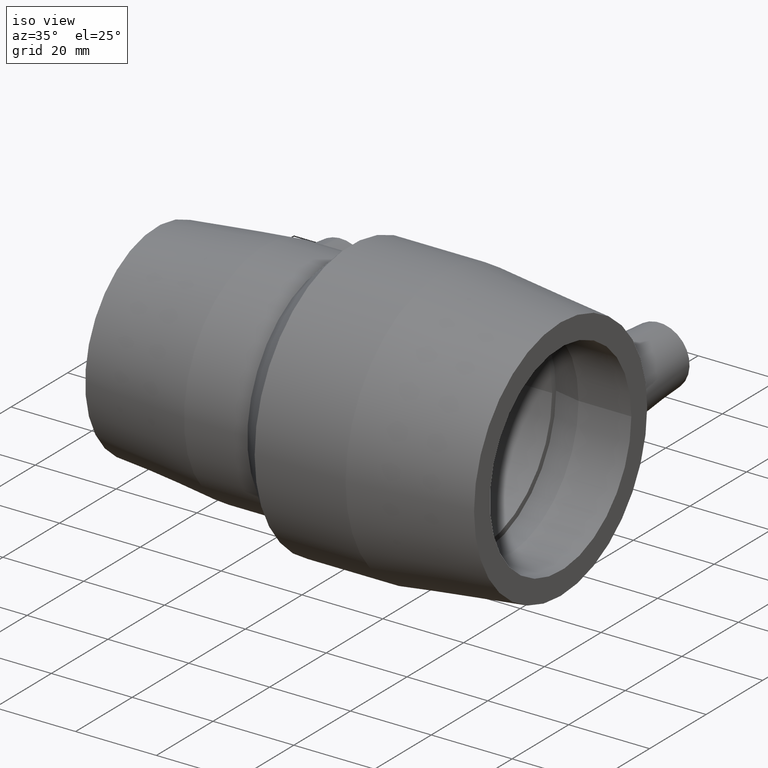
[diagram: clean part render]
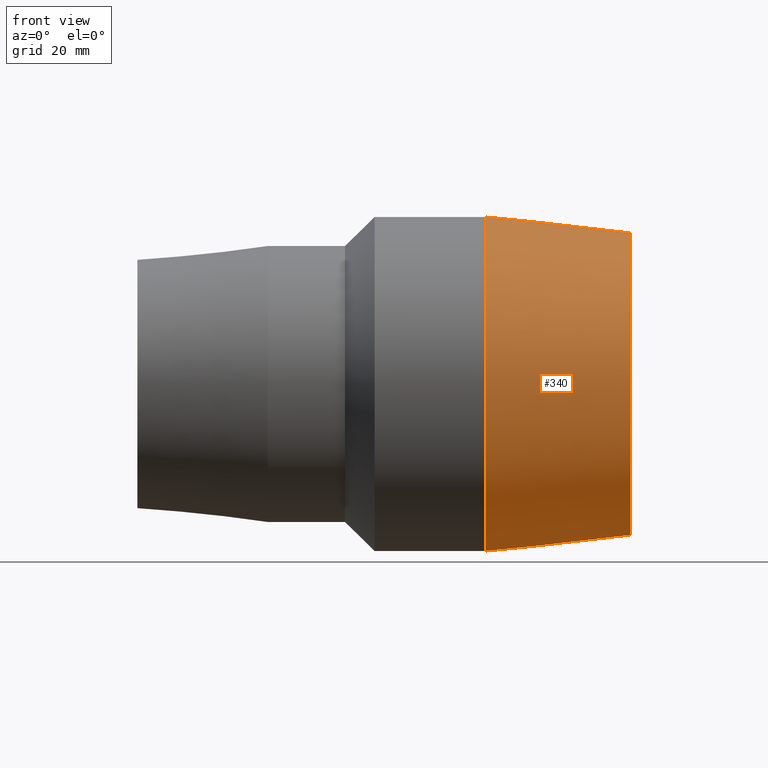
[diagram: tour spotlight — one face highlighted and labeled with its STEP entity id]
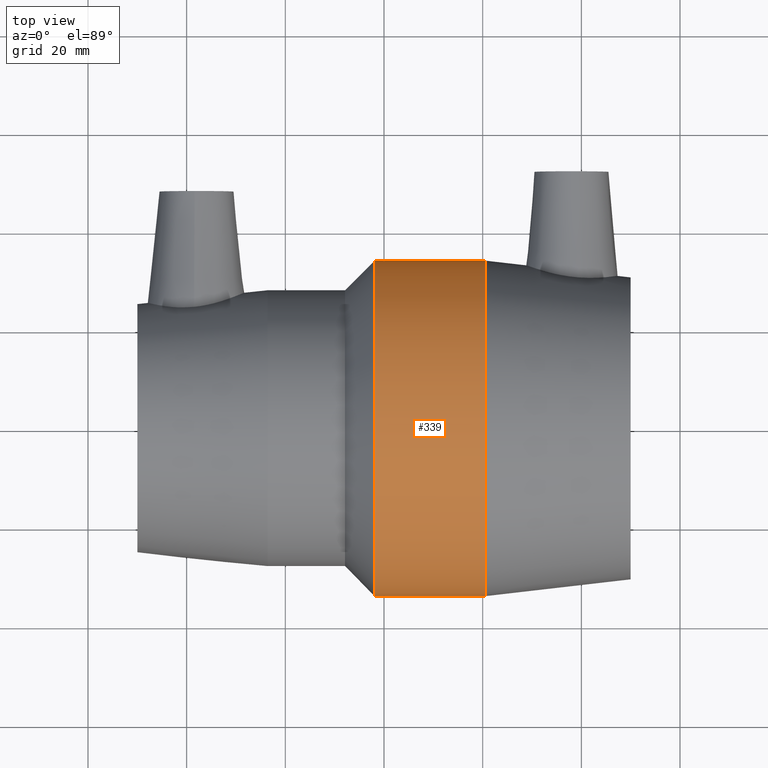
[diagram: tour spotlight — one face highlighted and labeled with its STEP entity id]
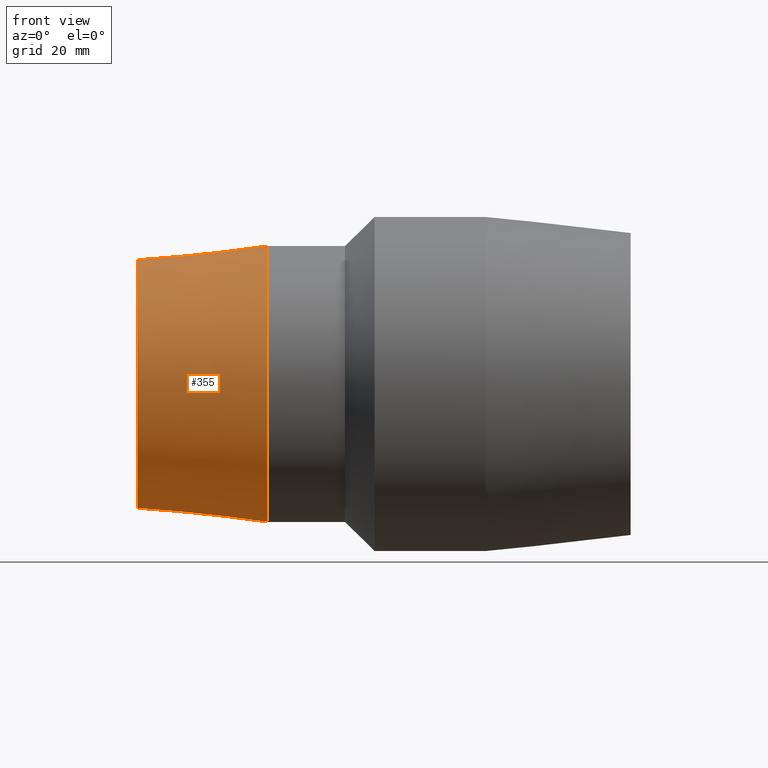
[diagram: tour spotlight — one face highlighted and labeled with its STEP entity id]
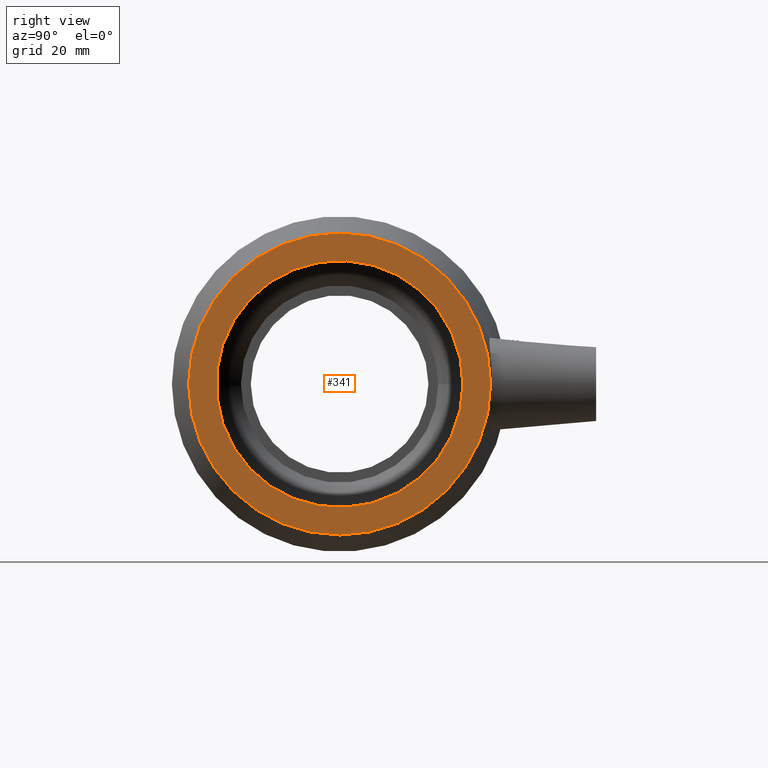
[diagram: tour spotlight — one face highlighted and labeled with its STEP entity id]
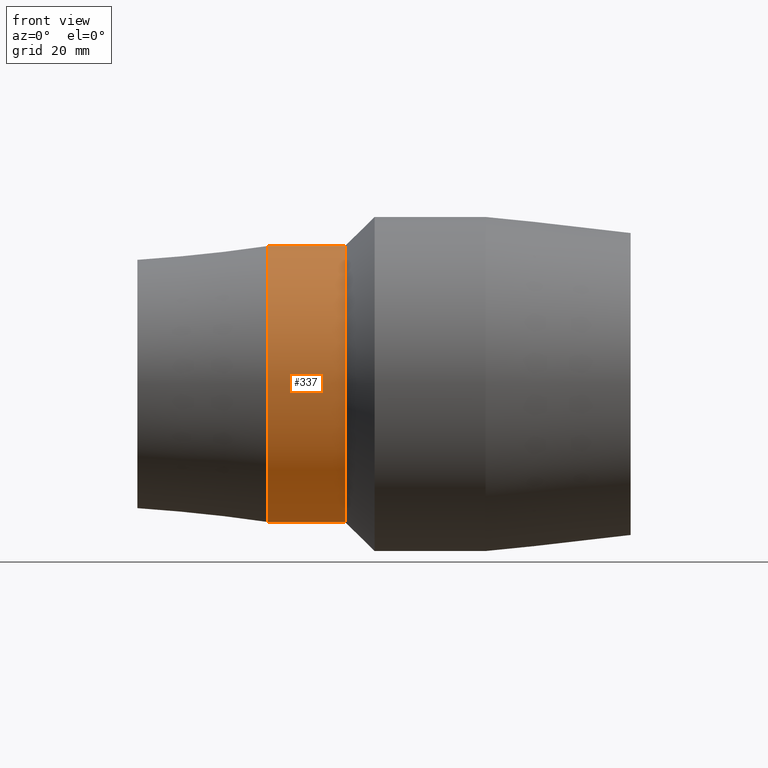
[diagram: tour spotlight — one face highlighted and labeled with its STEP entity id]
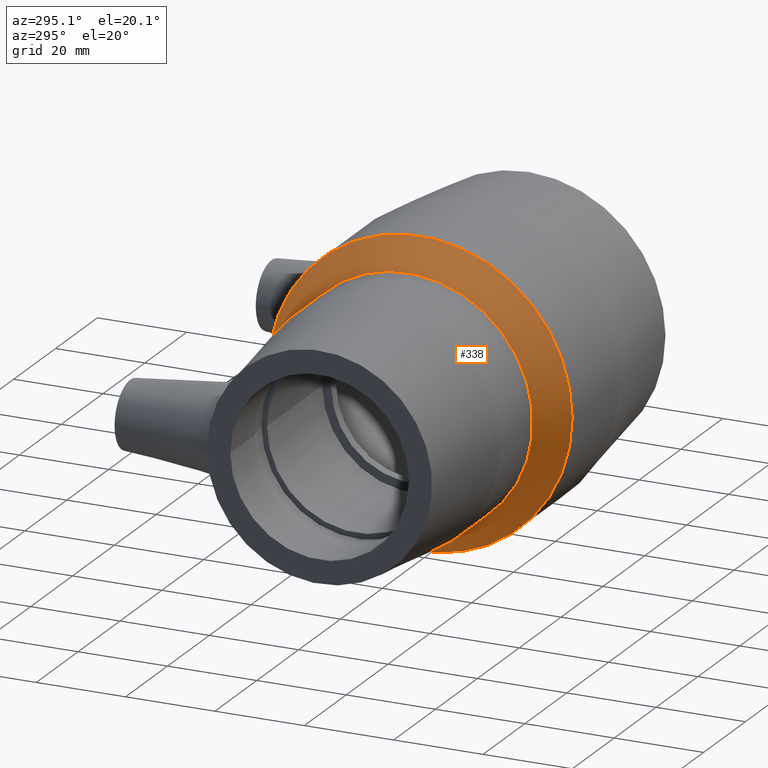
[diagram: tour spotlight — one face highlighted and labeled with its STEP entity id]
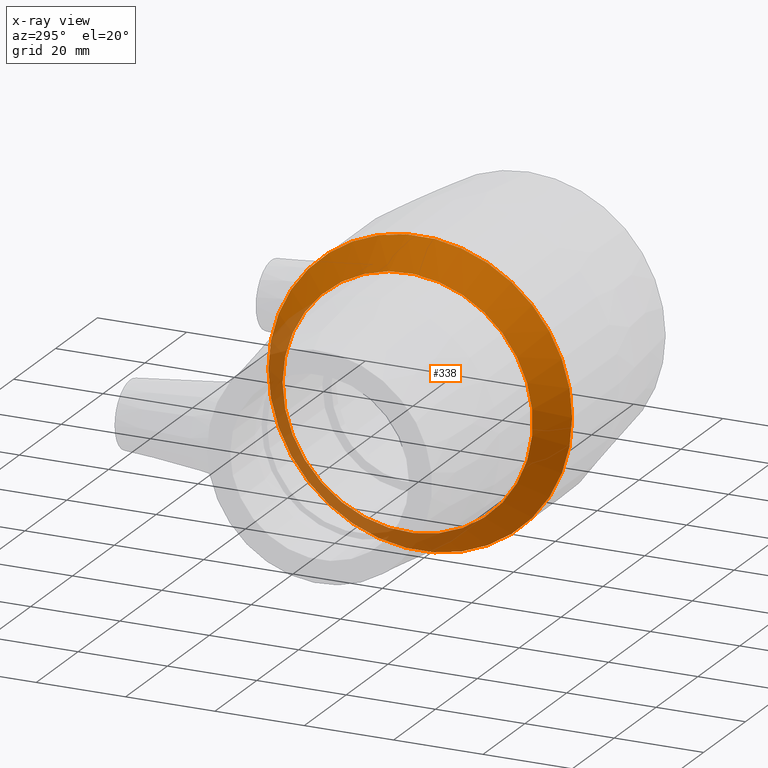
[diagram: x-ray of the same camera — body ghosted, this tour face saturated]
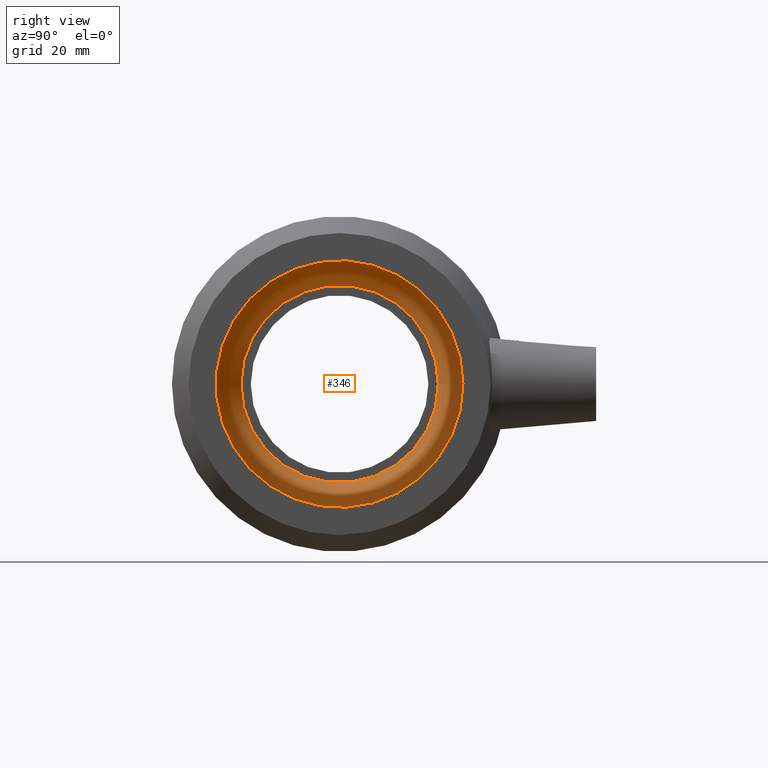
[diagram: tour spotlight — one face highlighted and labeled with its STEP entity id]
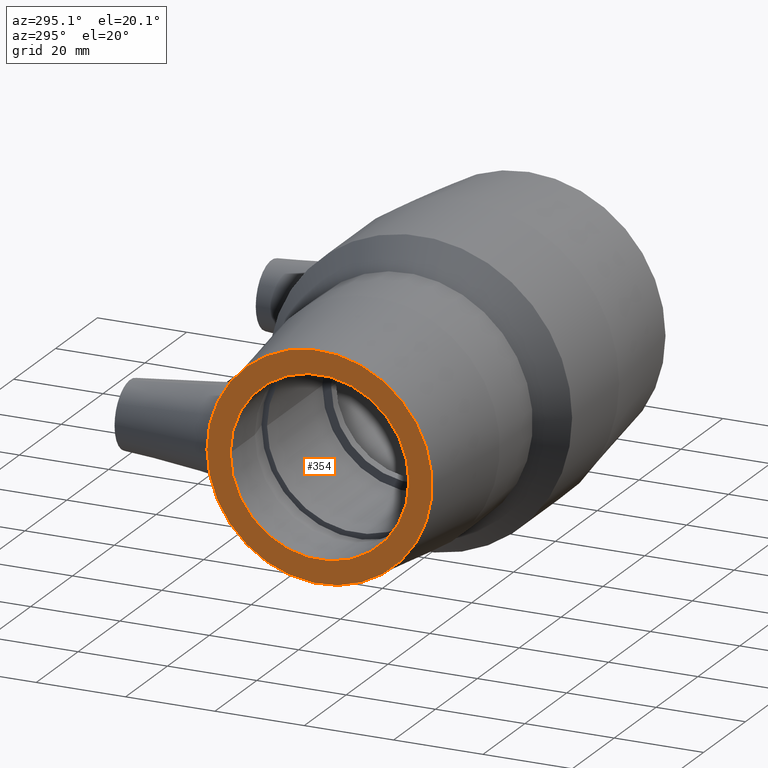
[diagram: tour spotlight — one face highlighted and labeled with its STEP entity id]
A machine part: a face-by-face anatomy tour. The part has 31 B-rep faces; the first image is the clean iso view, then the 8 largest visible faces are spotlighted one at a time (largest first), each with its STEP entity span.

Face 1 — front view, entity #340. In plain terms, the highlighted conical surface has half-angle 6.597 deg.
Definition (entity closure, byte-faithful):
#15=B_SPLINE_CURVE_WITH_KNOTS('',3,(#561,#562,#563,#564,#565,#566,#567,
#568,#569,#570,#571,#572,#573,#574,#575,#576,#577,#578,#579,#580,#581,#582,
#583,#584,#585,#586,#587,#588,#589,#590,#591,#592,#593,#594),
 .UNSPECIFIED.,.T.,.F.,(4,2,2,2,2,2,2,2,2,2,2,2,2,2,2,2,4),(0.,0.342432734766515,
0.684865469533029,1.02997856915003,1.37509166876702,1.72020476838402,2.06531786800102,
2.40775060276753,2.75018333753405,3.11916726229036,3.48815118704667,3.84866135423517,
4.20917152142366,4.56968168861216,4.93019185580066,5.29917578055697,5.66815970531328),
 .UNSPECIFIED.);
#20=CONICAL_SURFACE('',#387,32.3,6.59673829789422);
#38=FACE_BOUND('',#127,.T.);
#39=FACE_BOUND('',#128,.T.);
#82=FACE_OUTER_BOUND('',#126,.T.);
#126=EDGE_LOOP('',(#279));
#127=EDGE_LOOP('',(#280));
#128=EDGE_LOOP('',(#281));
#173=CIRCLE('',#386,34.);
#174=CIRCLE('',#388,30.6);
#195=VERTEX_POINT('',#560);
#204=VERTEX_POINT('',#652);
#205=VERTEX_POINT('',#655);
#226=EDGE_CURVE('',#195,#195,#15,.T.);
#235=EDGE_CURVE('',#204,#204,#173,.T.);
#236=EDGE_CURVE('',#205,#205,#174,.T.);
#279=ORIENTED_EDGE('',*,*,#236,.F.);
#280=ORIENTED_EDGE('',*,*,#226,.T.);
#281=ORIENTED_EDGE('',*,*,#235,.T.);
#340=ADVANCED_FACE('',(#82,#38,#39),#20,.T.);
#386=AXIS2_PLACEMENT_3D('',#653,#476,#477);
#387=AXIS2_PLACEMENT_3D('',#654,#478,#479);
#388=AXIS2_PLACEMENT_3D('',#656,#480,#481);
#476=DIRECTION('center_axis',(1.,1.83697019872103E-16,0.));
#477=DIRECTION('ref_axis',(0.,0.,-1.));
#478=DIRECTION('center_axis',(-1.,-1.83697019872103E-16,0.));
#479=DIRECTION('ref_axis',(-1.68112701893672E-16,1.,0.));
#480=DIRECTION('center_axis',(1.,1.83697019872103E-16,0.));
#481=DIRECTION('ref_axis',(0.,0.,-1.));
#560=CARTESIAN_POINT('',(38.4085254810939,30.5355225087836,-9.36899601082441));
#561=CARTESIAN_POINT('Ctrl Pts',(38.4085254810939,30.5355225087836,-9.36899601082441));
#562=CARTESIAN_POINT('Ctrl Pts',(39.5424107903605,30.4101609984625,-9.33053223507696));
#563=CARTESIAN_POINT('Ctrl Pts',(40.7490617034868,30.3487939558085,-9.06422943247845));
#564=CARTESIAN_POINT('Ctrl Pts',(42.956955881338,30.3641392340035,-8.06975601493136));
#565=CARTESIAN_POINT('Ctrl Pts',(43.9583183693886,30.4365503841,-7.34178839052401));
#566=CARTESIAN_POINT('Ctrl Pts',(45.5363006633839,30.6031300509679,-5.68810780576688));
#567=CARTESIAN_POINT('Ctrl Pts',(46.2192072077118,30.7083425914643,-4.64731901678957));
#568=CARTESIAN_POINT('Ctrl Pts',(47.1238051543204,30.8619399077858,-2.37858520128931));
#569=CARTESIAN_POINT('Ctrl Pts',(47.3453988441869,30.9069946914886,-1.15037699872333));
#570=CARTESIAN_POINT('Ctrl Pts',(47.3453988441869,30.9069946914886,1.15037699872333));
#571=CARTESIAN_POINT('Ctrl Pts',(47.1238051543204,30.8619399077858,2.37858520128931));
#572=CARTESIAN_POINT('Ctrl Pts',(46.2192072077118,30.7083425914643,4.64731901678956));
#573=CARTESIAN_POINT('Ctrl Pts',(45.5363006633839,30.6031300509679,5.68810780576688));
#574=CARTESIAN_POINT('Ctrl Pts',(43.9583183693886,30.4365503841,7.34178839052401));
#575=CARTESIAN_POINT('Ctrl Pts',(42.956955881338,30.3641392340035,8.06975601493136));
#576=CARTESIAN_POINT('Ctrl Pts',(40.7490617034868,30.3487939558085,9.06422943247845));
#577=CARTESIAN_POINT('Ctrl Pts',(39.5424107903605,30.4101609984625,9.33053223507696));
#578=CARTESIAN_POINT('Ctrl Pts',(37.186722162781,30.6706041683193,9.41044215044629));
#579=CARTESIAN_POINT('Ctrl Pts',(35.8943817477014,30.8964776332697,9.19459344926441));
#580=CARTESIAN_POINT('Ctrl Pts',(33.528955443483,31.4444182565663,8.25167606210774));
#581=CARTESIAN_POINT('Ctrl Pts',(32.4545607247763,31.7617776769293,7.52516142753915));
#582=CARTESIAN_POINT('Ctrl Pts',(30.7765229812766,32.3087200692648,5.85245393581107));
#583=CARTESIAN_POINT('Ctrl Pts',(30.0518227851557,32.5762004731236,4.79999589671865));
#584=CARTESIAN_POINT('Ctrl Pts',(29.0841659888349,32.9469362120325,2.47500993053819));
#585=CARTESIAN_POINT('Ctrl Pts',(28.8418155378304,33.0468648697747,1.20170055729499));
#586=CARTESIAN_POINT('Ctrl Pts',(28.8418155378304,33.0468648697747,-1.20170055729498));
#587=CARTESIAN_POINT('Ctrl Pts',(29.0841659888349,32.9469362120325,-2.47500993053819));
#588=CARTESIAN_POINT('Ctrl Pts',(30.0518227851557,32.5762004731237,-4.79999589671865));
#589=CARTESIAN_POINT('Ctrl Pts',(30.7765229812766,32.3087200692648,-5.85245393581107));
#590=CARTESIAN_POINT('Ctrl Pts',(32.4545607247763,31.7617776769293,-7.52516142753915));
#591=CARTESIAN_POINT('Ctrl Pts',(33.528955443483,31.4444182565663,-8.25167606210774));
#592=CARTESIAN_POINT('Ctrl Pts',(35.8943817477014,30.8964776332697,-9.19459344926441));
#593=CARTESIAN_POINT('Ctrl Pts',(37.186722162781,30.6706041683194,-9.41044215044629));
#594=CARTESIAN_POINT('Ctrl Pts',(38.4085254810939,30.5355225087836,-9.3689960108244));
#652=CARTESIAN_POINT('',(20.6,34.,0.));
#653=CARTESIAN_POINT('Origin',(20.6,1.29690096029705E-14,0.));
#654=CARTESIAN_POINT('Origin',(35.3,1.56693557950904E-14,0.));
#655=CARTESIAN_POINT('',(50.,30.6,0.));
#656=CARTESIAN_POINT('Origin',(50.,1.83697019872103E-14,0.));

Face 2 — top view, entity #339. In plain terms, the highlighted cylindrical surface (bore or boss wall) has radius 34 mm, axis along (1, 0, 0).
Definition (entity closure, byte-faithful):
#37=FACE_BOUND('',#125,.T.);
#61=CYLINDRICAL_SURFACE('',#385,34.);
#81=FACE_OUTER_BOUND('',#124,.T.);
#124=EDGE_LOOP('',(#277));
#125=EDGE_LOOP('',(#278));
#172=CIRCLE('',#384,34.);
#173=CIRCLE('',#386,34.);
#203=VERTEX_POINT('',#649);
#204=VERTEX_POINT('',#652);
#234=EDGE_CURVE('',#203,#203,#172,.T.);
#235=EDGE_CURVE('',#204,#204,#173,.T.);
#277=ORIENTED_EDGE('',*,*,#235,.F.);
#278=ORIENTED_EDGE('',*,*,#234,.T.);
#339=ADVANCED_FACE('',(#81,#37),#61,.T.);
#384=AXIS2_PLACEMENT_3D('',#650,#472,#473);
#385=AXIS2_PLACEMENT_3D('',#651,#474,#475);
#386=AXIS2_PLACEMENT_3D('',#653,#476,#477);
#472=DIRECTION('center_axis',(1.,1.83697019872103E-16,0.));
#473=DIRECTION('ref_axis',(0.,0.,-1.));
#474=DIRECTION('center_axis',(1.,1.83697019872103E-16,0.));
#475=DIRECTION('ref_axis',(-1.68112701893672E-16,1.,0.));
#476=DIRECTION('center_axis',(1.,1.83697019872103E-16,0.));
#477=DIRECTION('ref_axis',(0.,0.,-1.));
#649=CARTESIAN_POINT('',(-1.9,34.,0.));
#650=CARTESIAN_POINT('Origin',(-1.89999999999999,8.83582665584815E-15,0.));
#651=CARTESIAN_POINT('Origin',(9.35000000000001,1.09024181294093E-14,0.));
#652=CARTESIAN_POINT('',(20.6,34.,0.));
#653=CARTESIAN_POINT('Origin',(20.6,1.29690096029705E-14,0.));

Face 3 — front view, entity #355. In plain terms, the highlighted conical surface has half-angle 6.054 deg.
Definition (entity closure, byte-faithful):
#16=B_SPLINE_CURVE_WITH_KNOTS('',3,(#609,#610,#611,#612,#613,#614,#615,
#616,#617,#618,#619,#620,#621,#622,#623,#624,#625,#626,#627,#628,#629,#630,
#631,#632,#633,#634,#635,#636,#637,#638,#639,#640,#641,#642),
 .UNSPECIFIED.,.T.,.F.,(4,2,2,2,2,2,2,2,2,2,2,2,2,2,2,2,4),(0.,0.361943596888965,
0.723887193777931,1.08941629483366,1.45494539588939,1.82047449694512,2.18600359800085,
2.54794719488982,2.90989079177879,3.30576732530484,3.70164385883088,4.08555674775356,
4.46946963667623,4.85338252559891,5.23729541452158,5.63317194804763,6.02904848157368),
 .UNSPECIFIED.);
#24=CONICAL_SURFACE('',#417,26.6,6.05419189411482);
#54=FACE_BOUND('',#158,.T.);
#55=FACE_BOUND('',#159,.T.);
#97=FACE_OUTER_BOUND('',#157,.T.);
#157=EDGE_LOOP('',(#310));
#158=EDGE_LOOP('',(#311));
#159=EDGE_LOOP('',(#312));
#171=CIRCLE('',#382,28.);
#188=CIRCLE('',#416,25.2);
#200=VERTEX_POINT('',#608);
#202=VERTEX_POINT('',#646);
#219=VERTEX_POINT('',#697);
#231=EDGE_CURVE('',#200,#200,#16,.T.);
#233=EDGE_CURVE('',#202,#202,#171,.T.);
#250=EDGE_CURVE('',#219,#219,#188,.T.);
#310=ORIENTED_EDGE('',*,*,#233,.F.);
#311=ORIENTED_EDGE('',*,*,#231,.T.);
#312=ORIENTED_EDGE('',*,*,#250,.T.);
#355=ADVANCED_FACE('',(#97,#54,#55),#24,.T.);
#382=AXIS2_PLACEMENT_3D('',#647,#468,#469);
#416=AXIS2_PLACEMENT_3D('',#698,#536,#537);
#417=AXIS2_PLACEMENT_3D('',#699,#538,#539);
#468=DIRECTION('center_axis',(1.,1.83697019872103E-16,0.));
#469=DIRECTION('ref_axis',(0.,0.,-1.));
#536=DIRECTION('center_axis',(1.,1.83697019872103E-16,0.));
#537=DIRECTION('ref_axis',(0.,0.,-1.));
#538=DIRECTION('center_axis',(1.,1.83697019872103E-16,0.));
#539=DIRECTION('ref_axis',(-1.68112701893672E-16,1.,0.));
#608=CARTESIAN_POINT('',(-38.5012523197046,24.470020217716,9.96049598715385));
#609=CARTESIAN_POINT('Ctrl Pts',(-38.5012523197046,24.470020217716,9.96049598715385));
#610=CARTESIAN_POINT('Ctrl Pts',(-39.7010019434823,24.3521637538701,9.91252263753042));
#611=CARTESIAN_POINT('Ctrl Pts',(-40.9729489293836,24.3297913743947,9.62014234649662));
#612=CARTESIAN_POINT('Ctrl Pts',(-43.2904237879436,24.4658139477323,8.55053278822265));
#613=CARTESIAN_POINT('Ctrl Pts',(-44.3366114362158,24.6174326050331,7.773882196001));
#614=CARTESIAN_POINT('Ctrl Pts',(-45.9830079409301,24.9247450482363,6.02027983612236));
#615=CARTESIAN_POINT('Ctrl Pts',(-46.6956295561316,25.1015400717959,4.91864566609986));
#616=CARTESIAN_POINT('Ctrl Pts',(-47.6406195415798,25.3540616460062,2.51800296211801));
#617=CARTESIAN_POINT('Ctrl Pts',(-47.8726622389102,25.4256267322368,1.21843033685244));
#618=CARTESIAN_POINT('Ctrl Pts',(-47.8726622389102,25.4256267322368,-1.21843033685244));
#619=CARTESIAN_POINT('Ctrl Pts',(-47.6406195415798,25.3540616460062,-2.51800296211801));
#620=CARTESIAN_POINT('Ctrl Pts',(-46.6956295561316,25.1015400717959,-4.91864566609986));
#621=CARTESIAN_POINT('Ctrl Pts',(-45.9830079409301,24.9247450482363,-6.02027983612236));
#622=CARTESIAN_POINT('Ctrl Pts',(-44.3366114362158,24.6174326050331,-7.773882196001));
#623=CARTESIAN_POINT('Ctrl Pts',(-43.2904237879436,24.4658139477323,-8.55053278822265));
#624=CARTESIAN_POINT('Ctrl Pts',(-40.9729489293836,24.3297913743947,-9.62014234649662));
#625=CARTESIAN_POINT('Ctrl Pts',(-39.7010019434823,24.3521637538701,-9.91252263753041));
#626=CARTESIAN_POINT('Ctrl Pts',(-37.1890237674033,24.5989259609367,-10.012966934323));
#627=CARTESIAN_POINT('Ctrl Pts',(-35.8089557113109,24.8559128491137,-9.78217299145423));
#628=CARTESIAN_POINT('Ctrl Pts',(-33.2927141137259,25.5120447262432,-8.77313472309622));
#629=CARTESIAN_POINT('Ctrl Pts',(-32.1543412288464,25.9038773275232,-7.99563457567486));
#630=CARTESIAN_POINT('Ctrl Pts',(-30.3850914502599,26.5793154897828,-6.21521636869501));
#631=CARTESIAN_POINT('Ctrl Pts',(-29.6225245456415,26.9109461292458,-5.10007156591928));
#632=CARTESIAN_POINT('Ctrl Pts',(-28.602029035852,27.3717405020476,-2.63289635849955));
#633=CARTESIAN_POINT('Ctrl Pts',(-28.3450205628224,27.496740243337,-1.27970962974225));
#634=CARTESIAN_POINT('Ctrl Pts',(-28.3450205628224,27.496740243337,1.27970962974225));
#635=CARTESIAN_POINT('Ctrl Pts',(-28.602029035852,27.3717405020476,2.63289635849954));
#636=CARTESIAN_POINT('Ctrl Pts',(-29.6225245456415,26.9109461292458,5.10007156591928));
#637=CARTESIAN_POINT('Ctrl Pts',(-30.3850914502599,26.5793154897828,6.21521636869501));
#638=CARTESIAN_POINT('Ctrl Pts',(-32.1543412288463,25.9038773275232,7.99563457567486));
#639=CARTESIAN_POINT('Ctrl Pts',(-33.2927141137259,25.5120447262432,8.77313472309621));
#640=CARTESIAN_POINT('Ctrl Pts',(-35.8089557113109,24.8559128491137,9.78217299145423));
#641=CARTESIAN_POINT('Ctrl Pts',(-37.1890237674033,24.5989259609367,10.012966934323));
#642=CARTESIAN_POINT('Ctrl Pts',(-38.5012523197046,24.470020217716,9.96049598715385));
#646=CARTESIAN_POINT('',(-23.6,28.,0.));
#647=CARTESIAN_POINT('Origin',(-23.6,4.84960132462352E-15,0.));
#697=CARTESIAN_POINT('',(-50.,25.2,0.));
#698=CARTESIAN_POINT('Origin',(-50.,7.39557098644699E-31,0.));
#699=CARTESIAN_POINT('Origin',(-36.8,2.42480066231176E-15,0.));

Face 4 — right view, entity #341. In plain terms, the highlighted planar face has unit normal (1, 0, 0).
Definition (entity closure, byte-faithful):
#40=FACE_BOUND('',#130,.T.);
#83=FACE_OUTER_BOUND('',#129,.T.);
#129=EDGE_LOOP('',(#282));
#130=EDGE_LOOP('',(#283));
#174=CIRCLE('',#388,30.6);
#175=CIRCLE('',#390,25.);
#205=VERTEX_POINT('',#655);
#206=VERTEX_POINT('',#658);
#236=EDGE_CURVE('',#205,#205,#174,.T.);
#237=EDGE_CURVE('',#206,#206,#175,.T.);
#282=ORIENTED_EDGE('',*,*,#236,.T.);
#283=ORIENTED_EDGE('',*,*,#237,.F.);
#319=PLANE('',#389);
#341=ADVANCED_FACE('',(#83,#40),#319,.T.);
#388=AXIS2_PLACEMENT_3D('',#656,#480,#481);
#389=AXIS2_PLACEMENT_3D('',#657,#482,#483);
#390=AXIS2_PLACEMENT_3D('',#659,#484,#485);
#480=DIRECTION('center_axis',(1.,1.83697019872103E-16,0.));
#481=DIRECTION('ref_axis',(0.,0.,-1.));
#482=DIRECTION('center_axis',(1.,1.83697019872103E-16,0.));
#483=DIRECTION('ref_axis',(0.,0.,-1.));
#484=DIRECTION('center_axis',(1.,1.83697019872103E-16,0.));
#485=DIRECTION('ref_axis',(0.,0.,-1.));
#655=CARTESIAN_POINT('',(50.,30.6,0.));
#656=CARTESIAN_POINT('Origin',(50.,1.83697019872103E-14,0.));
#657=CARTESIAN_POINT('Origin',(50.,25.,0.));
#658=CARTESIAN_POINT('',(50.,25.,0.));
#659=CARTESIAN_POINT('Origin',(50.,1.83697019872103E-14,0.));

Face 5 — front view, entity #337. In plain terms, the highlighted cylindrical surface (bore or boss wall) has radius 28 mm, axis along (1, 0, 0).
Definition (entity closure, byte-faithful):
#35=FACE_BOUND('',#121,.T.);
#60=CYLINDRICAL_SURFACE('',#380,28.);
#79=FACE_OUTER_BOUND('',#120,.T.);
#120=EDGE_LOOP('',(#273));
#121=EDGE_LOOP('',(#274));
#170=CIRCLE('',#381,28.);
#171=CIRCLE('',#382,28.);
#201=VERTEX_POINT('',#644);
#202=VERTEX_POINT('',#646);
#232=EDGE_CURVE('',#201,#201,#170,.T.);
#233=EDGE_CURVE('',#202,#202,#171,.T.);
#273=ORIENTED_EDGE('',*,*,#232,.F.);
#274=ORIENTED_EDGE('',*,*,#233,.T.);
#337=ADVANCED_FACE('',(#79,#35),#60,.T.);
#380=AXIS2_PLACEMENT_3D('',#643,#464,#465);
#381=AXIS2_PLACEMENT_3D('',#645,#466,#467);
#382=AXIS2_PLACEMENT_3D('',#647,#468,#469);
#464=DIRECTION('center_axis',(1.,1.83697019872103E-16,0.));
#465=DIRECTION('ref_axis',(-1.68112701893672E-16,1.,0.));
#466=DIRECTION('center_axis',(1.,1.83697019872103E-16,0.));
#467=DIRECTION('ref_axis',(0.,0.,-1.));
#468=DIRECTION('center_axis',(1.,1.83697019872103E-16,0.));
#469=DIRECTION('ref_axis',(0.,0.,-1.));
#643=CARTESIAN_POINT('Origin',(-15.75,6.29162293061953E-15,0.));
#644=CARTESIAN_POINT('',(-7.9,28.,0.));
#645=CARTESIAN_POINT('Origin',(-7.89999999999999,7.73364453661554E-15,0.));
#646=CARTESIAN_POINT('',(-23.6,28.,0.));
#647=CARTESIAN_POINT('Origin',(-23.6,4.84960132462352E-15,0.));

Face 6 — auxiliary view, entity #338. An x-ray twin of the same camera follows (body ghosted, this face saturated) — the face is partly hidden behind the body. In plain terms, the highlighted conical surface has half-angle 45 deg.
Definition (entity closure, byte-faithful):
#19=CONICAL_SURFACE('',#383,31.,45.);
#36=FACE_BOUND('',#123,.T.);
#80=FACE_OUTER_BOUND('',#122,.T.);
#122=EDGE_LOOP('',(#275));
#123=EDGE_LOOP('',(#276));
#170=CIRCLE('',#381,28.);
#172=CIRCLE('',#384,34.);
#201=VERTEX_POINT('',#644);
#203=VERTEX_POINT('',#649);
#232=EDGE_CURVE('',#201,#201,#170,.T.);
#234=EDGE_CURVE('',#203,#203,#172,.T.);
#275=ORIENTED_EDGE('',*,*,#234,.F.);
#276=ORIENTED_EDGE('',*,*,#232,.T.);
#338=ADVANCED_FACE('',(#80,#36),#19,.T.);
#381=AXIS2_PLACEMENT_3D('',#645,#466,#467);
#383=AXIS2_PLACEMENT_3D('',#648,#470,#471);
#384=AXIS2_PLACEMENT_3D('',#650,#472,#473);
#466=DIRECTION('center_axis',(1.,1.83697019872103E-16,0.));
#467=DIRECTION('ref_axis',(0.,0.,-1.));
#470=DIRECTION('center_axis',(1.,1.83697019872103E-16,0.));
#471=DIRECTION('ref_axis',(-1.68112701893672E-16,1.,0.));
#472=DIRECTION('center_axis',(1.,1.83697019872103E-16,0.));
#473=DIRECTION('ref_axis',(0.,0.,-1.));
#644=CARTESIAN_POINT('',(-7.9,28.,0.));
#645=CARTESIAN_POINT('Origin',(-7.89999999999999,7.73364453661554E-15,0.));
#648=CARTESIAN_POINT('Origin',(-4.89999999999999,8.28473559623184E-15,0.));
#649=CARTESIAN_POINT('',(-1.9,34.,0.));
#650=CARTESIAN_POINT('Origin',(-1.89999999999999,8.83582665584815E-15,0.));

Face 7 — right view, entity #346. In plain terms, the highlighted conical surface has half-angle 46.169 deg.
Definition (entity closure, byte-faithful):
#22=CONICAL_SURFACE('',#399,22.5,46.1691393279074);
#45=FACE_BOUND('',#140,.T.);
#88=FACE_OUTER_BOUND('',#139,.T.);
#139=EDGE_LOOP('',(#292));
#140=EDGE_LOOP('',(#293));
#179=CIRCLE('',#398,25.);
#180=CIRCLE('',#400,20.);
#210=VERTEX_POINT('',#670);
#211=VERTEX_POINT('',#673);
#241=EDGE_CURVE('',#210,#210,#179,.T.);
#242=EDGE_CURVE('',#211,#211,#180,.T.);
#292=ORIENTED_EDGE('',*,*,#242,.F.);
#293=ORIENTED_EDGE('',*,*,#241,.T.);
#346=ADVANCED_FACE('',(#88,#45),#22,.F.);
#398=AXIS2_PLACEMENT_3D('',#671,#500,#501);
#399=AXIS2_PLACEMENT_3D('',#672,#502,#503);
#400=AXIS2_PLACEMENT_3D('',#674,#504,#505);
#500=DIRECTION('center_axis',(1.,1.83697019872103E-16,0.));
#501=DIRECTION('ref_axis',(0.,0.,-1.));
#502=DIRECTION('center_axis',(1.,1.83697019872103E-16,0.));
#503=DIRECTION('ref_axis',(-1.68112701893672E-16,1.,0.));
#504=DIRECTION('center_axis',(1.,1.83697019872103E-16,0.));
#505=DIRECTION('ref_axis',(0.,0.,-1.));
#670=CARTESIAN_POINT('',(0.999999999999996,25.,0.));
#671=CARTESIAN_POINT('Origin',(1.,9.36854801347725E-15,0.));
#672=CARTESIAN_POINT('Origin',(-1.39999999999999,8.9276751657842E-15,0.));
#673=CARTESIAN_POINT('',(-3.79999999999999,20.,0.));
#674=CARTESIAN_POINT('Origin',(-3.79999999999999,8.48680231809116E-15,0.));

Face 8 — auxiliary view, entity #354. In plain terms, the highlighted planar face has unit normal (-1, -0, 0).
Definition (entity closure, byte-faithful):
#53=FACE_BOUND('',#156,.T.);
#96=FACE_OUTER_BOUND('',#155,.T.);
#155=EDGE_LOOP('',(#308));
#156=EDGE_LOOP('',(#309));
#187=CIRCLE('',#414,20.);
#188=CIRCLE('',#416,25.2);
#218=VERTEX_POINT('',#694);
#219=VERTEX_POINT('',#697);
#249=EDGE_CURVE('',#218,#218,#187,.T.);
#250=EDGE_CURVE('',#219,#219,#188,.T.);
#308=ORIENTED_EDGE('',*,*,#250,.F.);
#309=ORIENTED_EDGE('',*,*,#249,.T.);
#324=PLANE('',#415);
#354=ADVANCED_FACE('',(#96,#53),#324,.T.);
#414=AXIS2_PLACEMENT_3D('',#695,#532,#533);
#415=AXIS2_PLACEMENT_3D('',#696,#534,#535);
#416=AXIS2_PLACEMENT_3D('',#698,#536,#537);
#532=DIRECTION('center_axis',(1.,1.83697019872103E-16,0.));
#533=DIRECTION('ref_axis',(0.,0.,-1.));
#534=DIRECTION('center_axis',(-1.,-1.83697019872103E-16,0.));
#535=DIRECTION('ref_axis',(0.,0.,1.));
#536=DIRECTION('center_axis',(1.,1.83697019872103E-16,0.));
#537=DIRECTION('ref_axis',(0.,0.,-1.));
#694=CARTESIAN_POINT('',(-50.,20.,0.));
#695=CARTESIAN_POINT('Origin',(-50.,7.39557098644699E-31,0.));
#696=CARTESIAN_POINT('Origin',(-50.,25.2,0.));
#697=CARTESIAN_POINT('',(-50.,25.2,0.));
#698=CARTESIAN_POINT('Origin',(-50.,7.39557098644699E-31,0.));